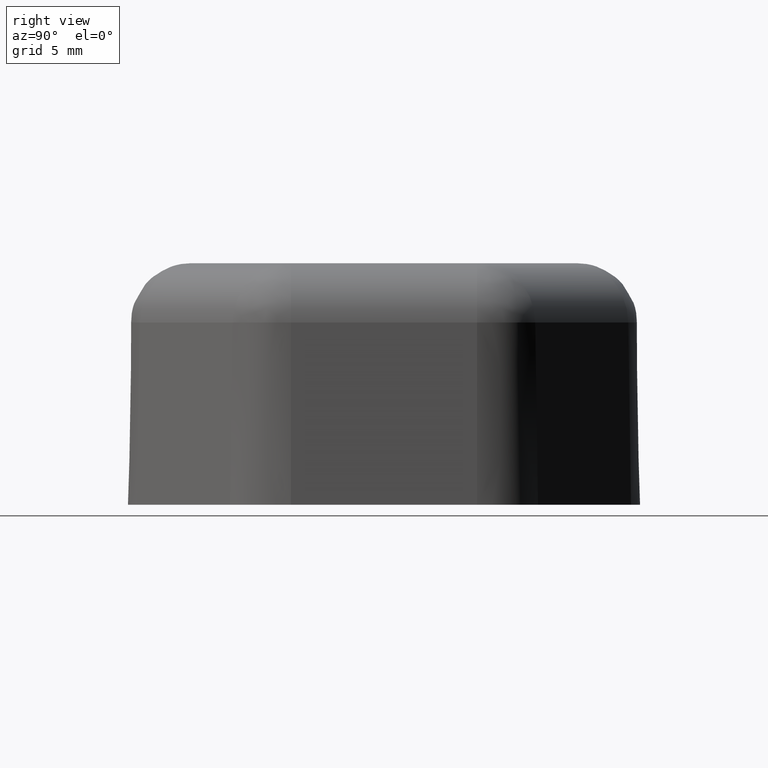
[diagram: clean part render]
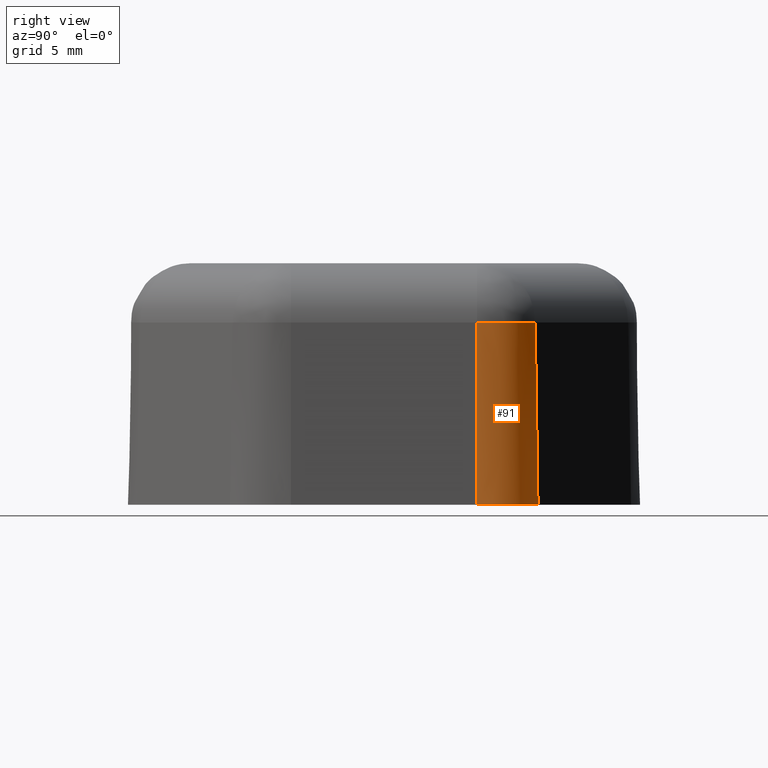
[diagram: same view with one face highlighted and labeled with its STEP entity id]
A machine part, right view. The second image highlights one B-rep face of the part: STEP entity #91.
In plain terms, the highlighted conical surface has half-angle 1 deg.
Its self-contained STEP definition (entity closure, byte-faithful):
#91 = ADVANCED_FACE( '', ( #148 ), #149, .T. );
#148 = FACE_OUTER_BOUND( '', #271, .T. );
#149 = CONICAL_SURFACE( '', #272, 3.50000000000000, 0.0174532925199433 );
#271 = EDGE_LOOP( '', ( #539, #540, #541, #542 ) );
#272 = AXIS2_PLACEMENT_3D( '', #543, #544, #545 );
#539 = ORIENTED_EDGE( '', *, *, #762, .F. );
#540 = ORIENTED_EDGE( '', *, *, #763, .T. );
#541 = ORIENTED_EDGE( '', *, *, #760, .T. );
#542 = ORIENTED_EDGE( '', *, *, #720, .F. );
#543 = CARTESIAN_POINT( '', ( 8.00000000000000, 4.61880215351702, 2.71440855903471E-015 ) );
#544 = DIRECTION( '', ( 1.22460635382238E-016, 0.000000000000000, -1.00000000000000 ) );
#545 = DIRECTION( '', ( 1.00000000000000, 0.000000000000000, 1.22460635382238E-016 ) );
#720 = EDGE_CURVE( '', #836, #838, #839, .T. );
#760 = EDGE_CURVE( '', #906, #838, #907, .T. );
#762 = EDGE_CURVE( '', #877, #836, #909, .T. );
#763 = EDGE_CURVE( '', #877, #906, #910, .T. );
#836 = VERTEX_POINT( '', #1005 );
#838 = VERTEX_POINT( '', #1008 );
#839 = CIRCLE( '', #1009, 3.50000000000000 );
#877 = VERTEX_POINT( '', #1057 );
#906 = VERTEX_POINT( '', #1096 );
#907 = LINE( '', #1097, #1098 );
#909 = LINE( '', #1101, #1102 );
#910 = CIRCLE( '', #1103, 3.34199051698349 );
#1005 = CARTESIAN_POINT( '', ( 9.74999999999999, 7.64989106676255, 1.19399119497682E-015 ) );
#1008 = CARTESIAN_POINT( '', ( 11.5000000000000, 4.61880215351701, 1.40829730689573E-015 ) );
#1009 = AXIS2_PLACEMENT_3D( '', #1202, #1203, #1204 );
#1057 = CARTESIAN_POINT( '', ( 9.67099525849174, 7.51305084043141, 9.05235721931186 ) );
#1096 = CARTESIAN_POINT( '', ( 11.3419905169835, 4.61880215351701, 9.05235721931185 ) );
#1097 = CARTESIAN_POINT( '', ( 11.5000000000000, 4.61880215351701, 3.18842651504474E-015 ) );
#1098 = VECTOR( '', #1282, 1000.00000000000 );
#1101 = CARTESIAN_POINT( '', ( 9.74999999999999, 7.64989106676255, 2.95555139024699E-015 ) );
#1102 = VECTOR( '', #1284, 1000.00000000000 );
#1103 = AXIS2_PLACEMENT_3D( '', #1285, #1286, #1287 );
#1202 = CARTESIAN_POINT( '', ( 8.00000000000000, 4.61880215351702, 9.79685083057901E-016 ) );
#1203 = DIRECTION( '', ( 1.22460635382238E-016, -8.04960107368379E-033, -1.00000000000000 ) );
#1204 = DIRECTION( '', ( 0.500000000000001, 0.866025403784438, 6.12303176911190E-017 ) );
#1282 = DIRECTION( '', ( 0.0174524064372836, -2.59500849934667E-017, -0.999847695156391 ) );
#1284 = DIRECTION( '', ( 0.00872620321864189, 0.0151142273318586, -0.999847695156391 ) );
#1285 = CARTESIAN_POINT( '', ( 7.99999999999999, 4.61880215351702, 9.05235721931186 ) );
#1286 = DIRECTION( '', ( 1.22460635382238E-016, 0.000000000000000, -1.00000000000000 ) );
#1287 = DIRECTION( '', ( -1.00000000000000, 0.000000000000000, -1.22460635382238E-016 ) );